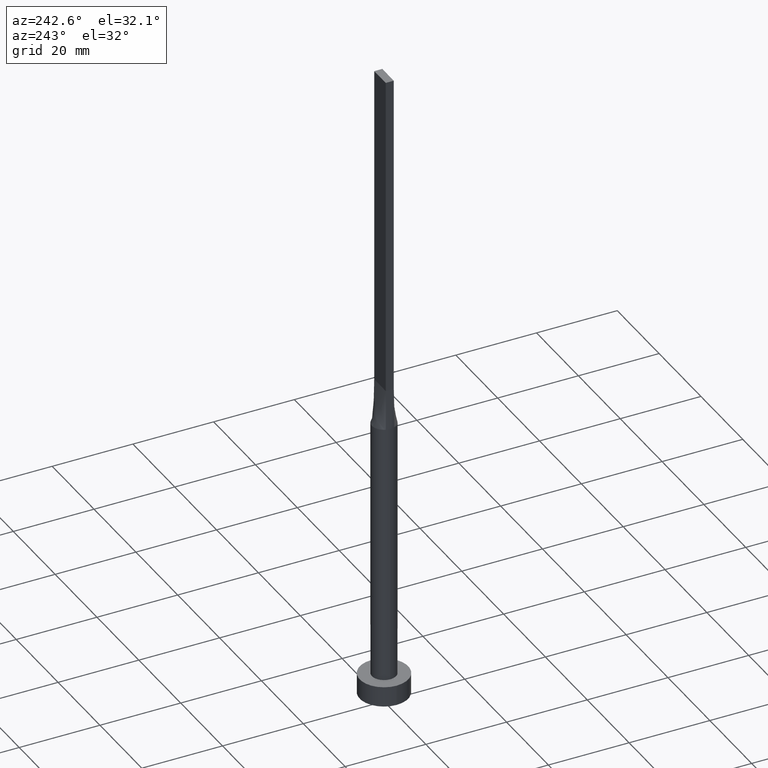
[diagram: clean part render]
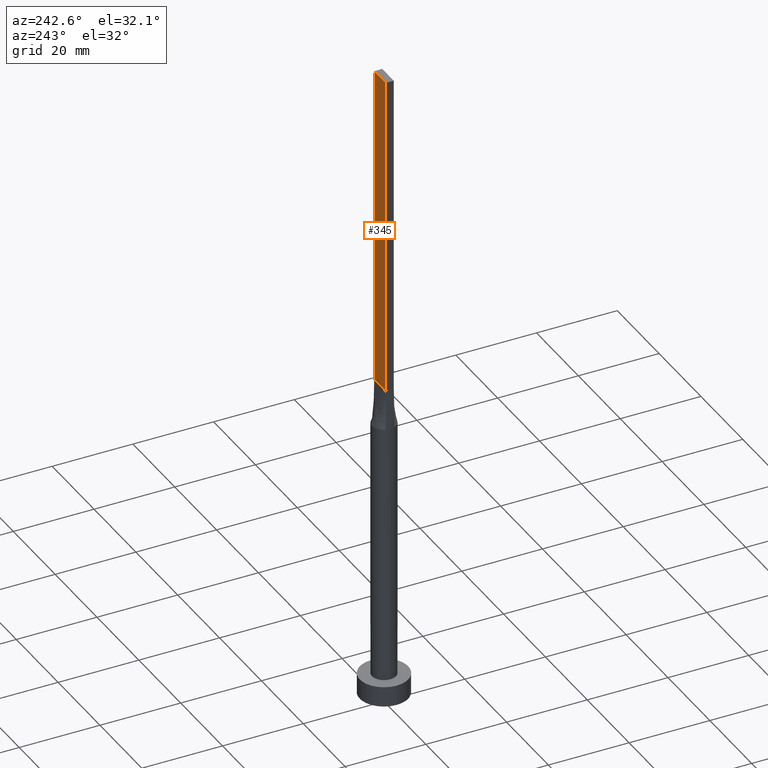
[diagram: same view with one face highlighted and labeled with its STEP entity id]
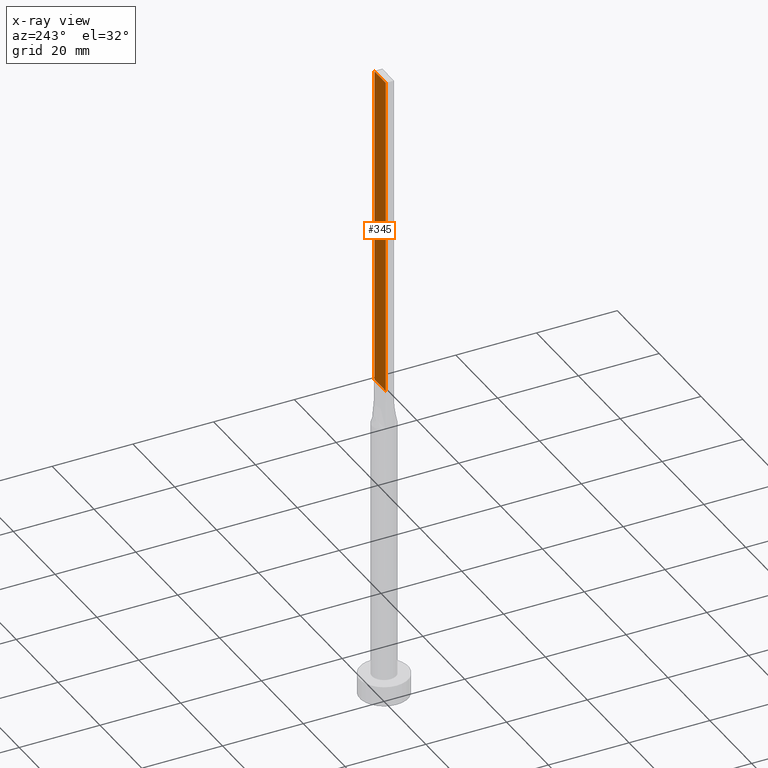
[diagram: x-ray of the same camera — body ghosted, the highlighted face saturated]
A machine part, auxiliary view. The second image highlights one B-rep face of the part: STEP entity #345.
The next image is the same camera in x-ray: the body ghosted, the highlighted face saturated — about 0% of this face is hidden behind the body in this view.
In plain terms, the highlighted planar face has unit normal (0, -1, 0).
Its self-contained STEP definition (entity closure, byte-faithful):
#3 = EDGE_LOOP ( 'NONE', ( #19, #488, #434, #254 ) ) ;
#19 = ORIENTED_EDGE ( 'NONE', *, *, #519, .T. ) ;
#32 = LINE ( 'NONE', #255, #285 ) ;
#47 = DIRECTION ( 'NONE',  ( -1.000000000000000000, -0.000000000000000000, -0.000000000000000000 ) ) ;
#58 = DIRECTION ( 'NONE',  ( 0.000000000000000000, -0.000000000000000000, -1.000000000000000000 ) ) ;
#64 = CARTESIAN_POINT ( 'NONE',  ( 2.749999999999999556, 1.000000000000000000, 160.0000000000000000 ) ) ;
#84 = DIRECTION ( 'NONE',  ( -0.000000000000000000, -0.000000000000000000, -1.000000000000000000 ) ) ;
#86 = VECTOR ( 'NONE', #352, 1000.000000000000000 ) ;
#91 = DIRECTION ( 'NONE',  ( -0.000000000000000000, -0.000000000000000000, -1.000000000000000000 ) ) ;
#94 = LINE ( 'NONE', #452, #332 ) ;
#144 = CARTESIAN_POINT ( 'NONE',  ( 2.749999999999999556, 1.000000000000000000, 160.0000000000000000 ) ) ;
#182 = EDGE_CURVE ( 'NONE', #439, #322, #454, .T. ) ;
#190 = CARTESIAN_POINT ( 'NONE',  ( -2.749999999999999556, 1.000000000000000000, 80.00000000000000000 ) ) ;
#254 = ORIENTED_EDGE ( 'NONE', *, *, #182, .T. ) ;
#255 = CARTESIAN_POINT ( 'NONE',  ( -2.749999999999999556, 1.000000000000000000, 160.0000000000000000 ) ) ;
#267 = VERTEX_POINT ( 'NONE', #190 ) ;
#279 = FACE_OUTER_BOUND ( 'NONE', #3, .T. ) ;
#284 = PLANE ( 'NONE',  #421 ) ;
#285 = VECTOR ( 'NONE', #84, 1000.000000000000000 ) ;
#288 = VECTOR ( 'NONE', #91, 1000.000000000000000 ) ;
#322 = VERTEX_POINT ( 'NONE', #424 ) ;
#332 = VECTOR ( 'NONE', #47, 1000.000000000000000 ) ;
#345 = ADVANCED_FACE ( 'NONE', ( #279 ), #284, .F. ) ;
#352 = DIRECTION ( 'NONE',  ( -1.000000000000000000, 0.000000000000000000, 0.000000000000000000 ) ) ;
#356 = CARTESIAN_POINT ( 'NONE',  ( -2.749999999999999556, 1.000000000000000000, 160.0000000000000000 ) ) ;
#421 = AXIS2_PLACEMENT_3D ( 'NONE', #64, #423, #58 ) ;
#423 = DIRECTION ( 'NONE',  ( 0.000000000000000000, -1.000000000000000000, 0.000000000000000000 ) ) ;
#424 = CARTESIAN_POINT ( 'NONE',  ( 2.749999999999999556, 1.000000000000000000, 80.00000000000000000 ) ) ;
#434 = ORIENTED_EDGE ( 'NONE', *, *, #507, .F. ) ;
#439 = VERTEX_POINT ( 'NONE', #531 ) ;
#444 = LINE ( 'NONE', #545, #86 ) ;
#452 = CARTESIAN_POINT ( 'NONE',  ( -2.749999999999999556, 1.000000000000000000, 80.00000000000000000 ) ) ;
#454 = LINE ( 'NONE', #144, #288 ) ;
#460 = EDGE_CURVE ( 'NONE', #502, #267, #32, .T. ) ;
#488 = ORIENTED_EDGE ( 'NONE', *, *, #460, .F. ) ;
#502 = VERTEX_POINT ( 'NONE', #356 ) ;
#507 = EDGE_CURVE ( 'NONE', #439, #502, #444, .T. ) ;
#519 = EDGE_CURVE ( 'NONE', #322, #267, #94, .T. ) ;
#531 = CARTESIAN_POINT ( 'NONE',  ( 2.749999999999999556, 1.000000000000000000, 160.0000000000000000 ) ) ;
#545 = CARTESIAN_POINT ( 'NONE',  ( 2.749999999999999556, 1.000000000000000000, 160.0000000000000000 ) ) ;